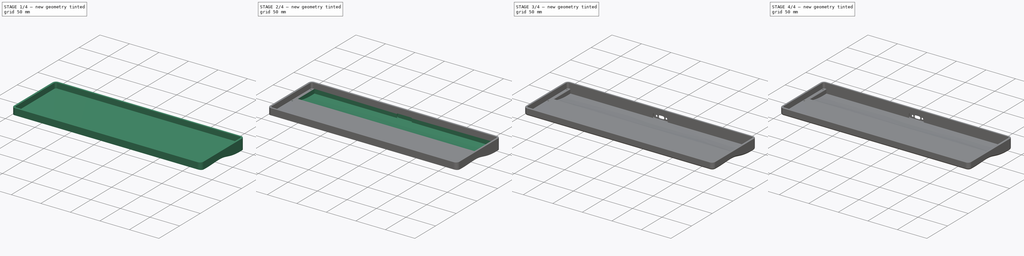
[diagram: build sequence overview — one tinted view per stage of 4, left to right]
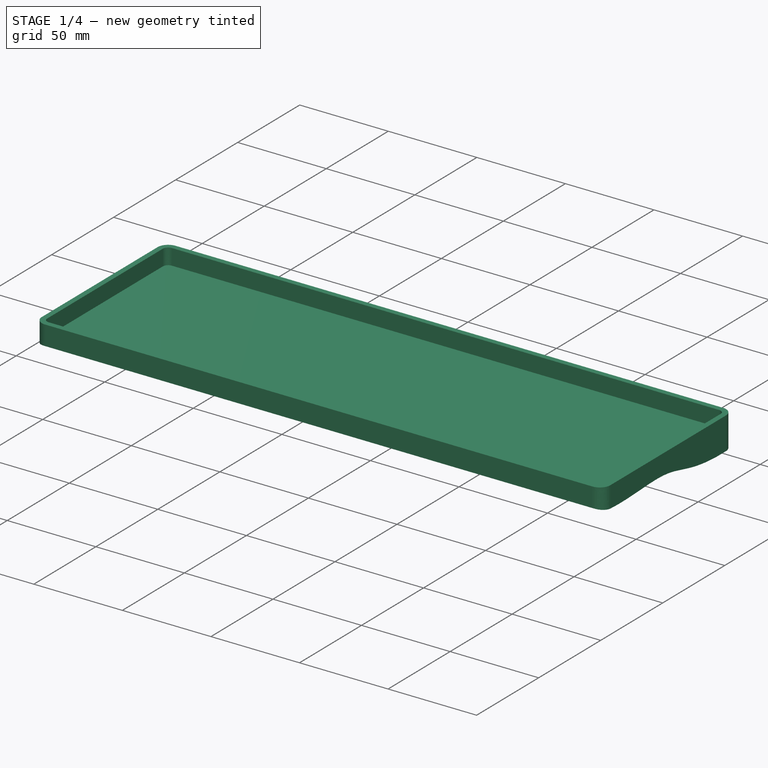
[diagram: stage 1 of 4 — iso view after this stage's code; geometry added in this stage tinted green]
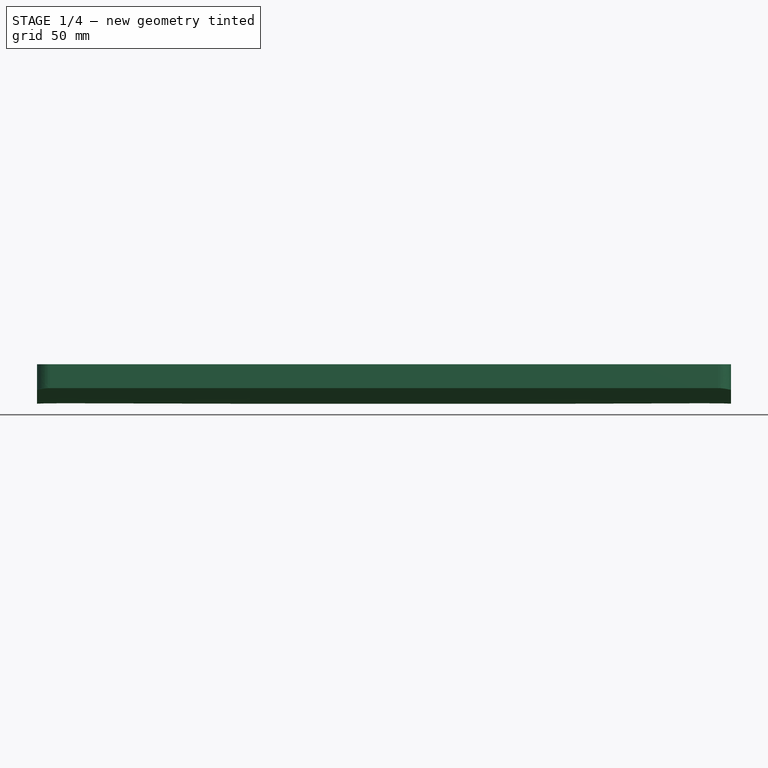
[diagram: stage 1 of 4 — front view after this stage's code; geometry added in this stage tinted green]
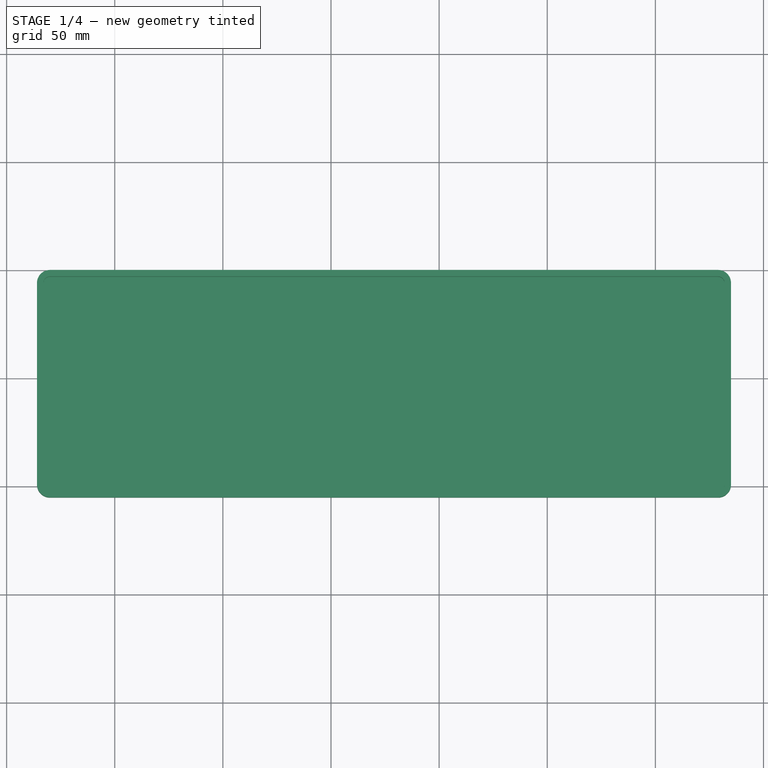
[diagram: stage 1 of 4 — top view after this stage's code; geometry added in this stage tinted green]
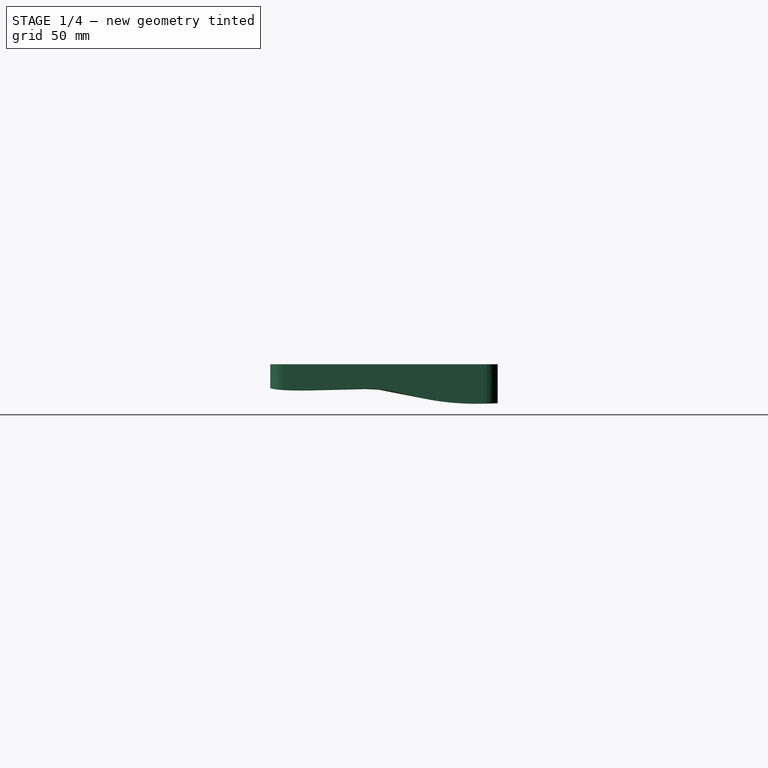
[diagram: stage 1 of 4 — right view after this stage's code; geometry added in this stage tinted green]
FCSTD DOCUMENT  (FreeCAD 1.0R39109 (Git))
Label: TReK_Case_v4
License: All rights reserved
LicenseURL: http://en.wikipedia.org/wiki/All_rights_reserved
objects: Sketcher::SketchObject×8, PartDesign::Pocket×7, PartDesign::Fillet×5, PartDesign::Pad×1, PartDesign::Body×1
note: 56 computed .brp shape members not serialized (recipe doc carries the construction recipe); baked Part::Feature solids carry a one-line shape summary decoded from their .brp

FEATURE [Sketcher::SketchObject] Sketch  label="ネジ穴"
  ArcFitTolerance = 1e-06
  FullyConstrained = false
  MakeInternals = false
  sketch-geometry (6):
    g0: BSplineCurve PolesCount=7 KnotsCount=4 Degree=2 IsPeriodic=0
    g1: BSplineCurve PolesCount=7 KnotsCount=4 Degree=2 IsPeriodic=0
    g2: BSplineCurve PolesCount=7 KnotsCount=4 Degree=2 IsPeriodic=0
    g3: BSplineCurve PolesCount=7 KnotsCount=4 Degree=2 IsPeriodic=0
    g4: BSplineCurve PolesCount=7 KnotsCount=4 Degree=2 IsPeriodic=0
    g5: BSplineCurve PolesCount=7 KnotsCount=4 Degree=2 IsPeriodic=0
FEATURE [Sketcher::SketchObject] Sketch001  label="内側外形線"
  ArcFitTolerance = 1e-06
  FullyConstrained = false
  MakeInternals = false
  sketch-geometry (8):
    g0: BSplineCurve PolesCount=3 KnotsCount=2 Degree=2 IsPeriodic=0
    g1: BSplineCurve PolesCount=2 KnotsCount=2 Degree=1 IsPeriodic=0
    g2: BSplineCurve PolesCount=3 KnotsCount=2 Degree=2 IsPeriodic=0
    g3: BSplineCurve PolesCount=2 KnotsCount=2 Degree=1 IsPeriodic=0
    g4: BSplineCurve PolesCount=3 KnotsCount=2 Degree=2 IsPeriodic=0
    g5: BSplineCurve PolesCount=2 KnotsCount=2 Degree=1 IsPeriodic=0
    g6: BSplineCurve PolesCount=3 KnotsCount=2 Degree=2 IsPeriodic=0
    g7: BSplineCurve PolesCount=2 KnotsCount=2 Degree=1 IsPeriodic=0
FEATURE [Sketcher::SketchObject] Sketch002  label="外側外形線"
  ArcFitTolerance = 1e-06
  FullyConstrained = false
  MakeInternals = false
  sketch-geometry (8):
    g0: BSplineCurve PolesCount=2 KnotsCount=2 Degree=1 IsPeriodic=0
    g1: BSplineCurve PolesCount=3 KnotsCount=2 Degree=2 IsPeriodic=0
    g2: BSplineCurve PolesCount=2 KnotsCount=2 Degree=1 IsPeriodic=0
    g3: BSplineCurve PolesCount=2 KnotsCount=2 Degree=1 IsPeriodic=0
    g4: BSplineCurve PolesCount=3 KnotsCount=2 Degree=2 IsPeriodic=0
    g5: BSplineCurve PolesCount=3 KnotsCount=2 Degree=2 IsPeriodic=0
    g6: BSplineCurve PolesCount=3 KnotsCount=2 Degree=2 IsPeriodic=0
    g7: BSplineCurve PolesCount=2 KnotsCount=2 Degree=1 IsPeriodic=0
FEATURE [PartDesign::Pad] Pad  label="Pad（外側外形線）"
  Direction = (0,0,1)
  Length = 25
  Length2 = 10
  Profile = -> Sketch002
  ReferenceAxis = -> Sketch002 [N_Axis]
  Refine = true
  Reversed = true
  Suppressed = false
  Type = 0
FEATURE [Sketcher::SketchObject] Sketch003  label="チルトカット"
  ArcFitTolerance = 1e-06
  AttachmentSupport = -> [Pad]
  ExternalGeometry = -> [Pad]
  FullyConstrained = false
  MakeInternals = false
  MapMode = 5
  Placement = pos=(14.0416,0,0) rot=(0.57735,-0.57735,-0.57735;2.0944rad)
  sketch-geometry (17):
    g0: LineSegment StartX=0.05 StartY=-18 StartZ=0 EndX=0.05 EndY=-31 EndZ=0
    g1: LineSegment StartX=0.05 StartY=-31 StartZ=0 EndX=105.25 EndY=-31 EndZ=0
    g2: LineSegment StartX=105.25 StartY=-31 StartZ=0 EndX=105.25 EndY=-11 EndZ=0
    g3: LineSegment [constr] StartX=105.25 StartY=-11 StartZ=0 EndX=105.25 EndY=0 EndZ=0
    g4: LineSegment [constr] StartX=0.05 StartY=0 StartZ=0 EndX=0.05 EndY=-18 EndZ=0
    g5-g10: Circle [constr] x6 (B-spline internal-alignment scaffolding for g11; pole/knot coordinates omitted)
    g11: BSplineCurve PolesCount=6 KnotsCount=4 Degree=3 IsPeriodic=0
    g12-g15: GeomPoint [constr] x4 (B-spline internal-alignment scaffolding for g11; pole/knot coordinates omitted)
    g16: LineSegment [constr] StartX=105.25 StartY=-11 StartZ=0 EndX=0.05 EndY=-11 EndZ=0
  constraints (23):
    c: PointOnObject(g0,g-6)
    c: Vertical(g0)
    c: Coincident(g0,g1)
    c: Horizontal(g1)
    c: Coincident(g1,g2)
    c: PointOnObject(g2,g-5)
    c: Vertical(g2)
    c: DistanceY(g2,g2) = 20
    c: Coincident(g3,g2)
    c: Coincident(g3,g-5)
    c: DistanceY(g3,g3) = 11
    c: Distance(g4) = 18
    c: Coincident(g4,g-6)
    c: Coincident(g4,g0)
    c: Weight(g5) = 1
    c: Equal(g5, g6-g10) x5
    c: InternalAlignment(g5-g10 -> g11) x6
    c: InternalAlignment(g12-g15 -> g11) x4
    c: Coincident(g5,g0)
    c: Coincident(g10,g2)
    c: Coincident(g16,g11)
    c: PointOnObject(g16,g4)
    c: Horizontal(g16)
FEATURE [PartDesign::Pocket] Pocket  label="Pocket（チルトカット）"
  BaseFeature = -> Pad
  Direction = (1,0,0)
  Length = 5
  Length2 = 5
  Profile = -> Sketch003
  ReferenceAxis = -> Sketch003 [N_Axis]
  Refine = true
  Suppressed = false
  Type = 1
FEATURE [PartDesign::Pocket] Pocket001  label="Pocket001（内側外形線）"
  BaseFeature = -> Pocket
  Direction = (0,0,-1)
  Length = 9
  Length2 = 5
  Profile = -> Sketch001
  ReferenceAxis = -> Sketch001 [N_Axis]
  Refine = true
  Suppressed = false
  Type = 0
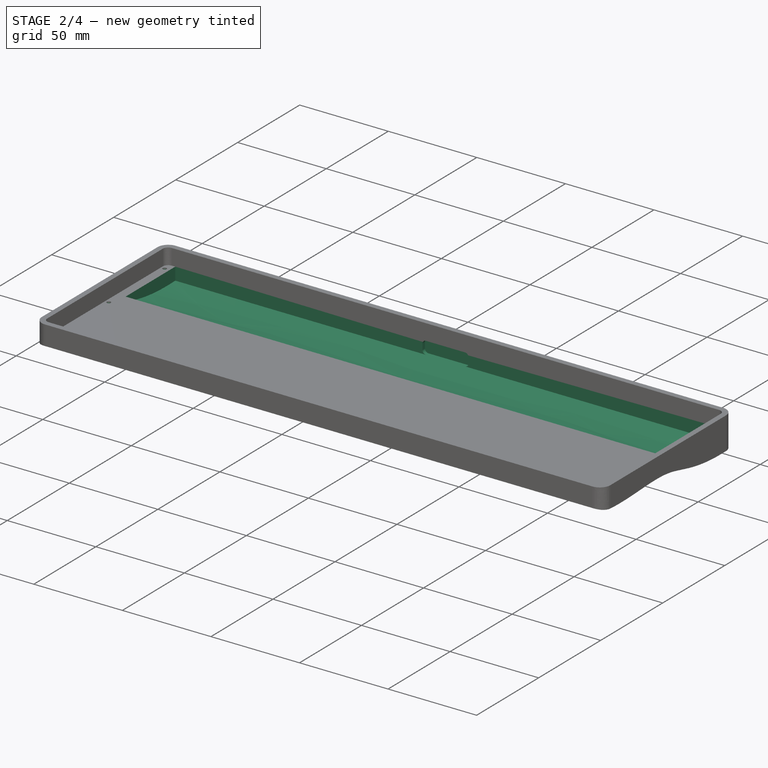
[diagram: stage 2 of 4 — iso view after this stage's code; geometry added in this stage tinted green]
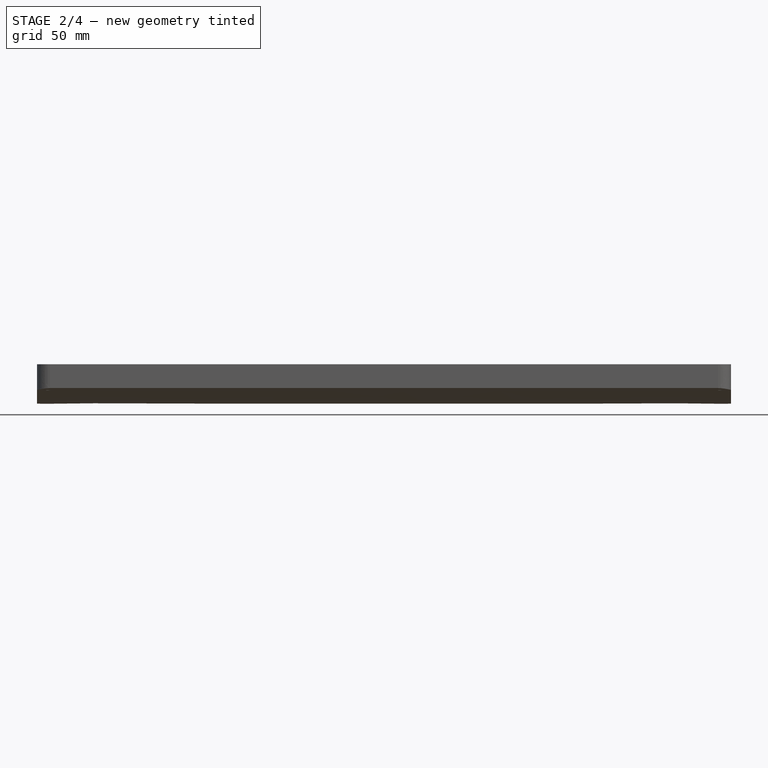
[diagram: stage 2 of 4 — front view after this stage's code; geometry added in this stage tinted green]
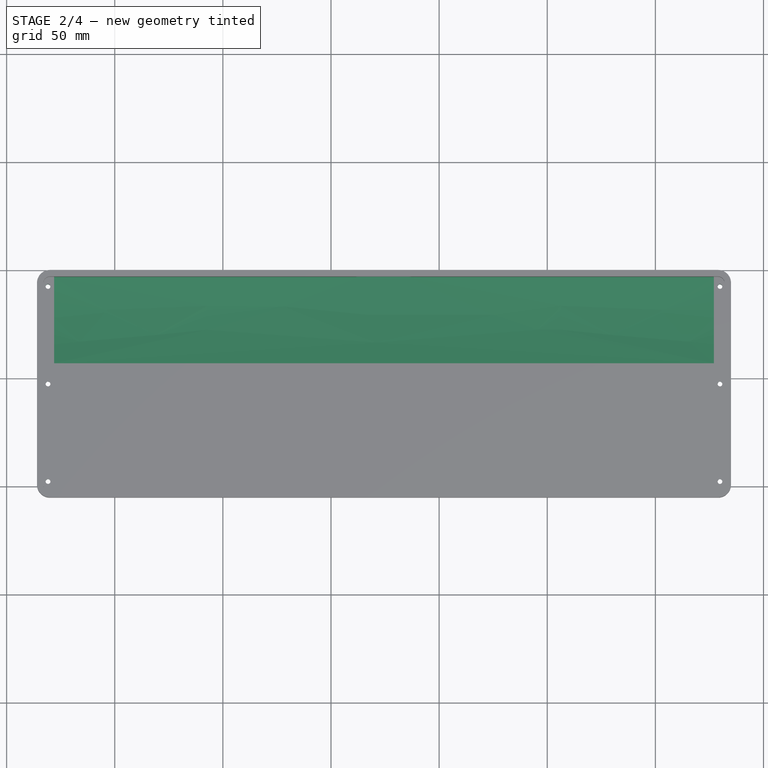
[diagram: stage 2 of 4 — top view after this stage's code; geometry added in this stage tinted green]
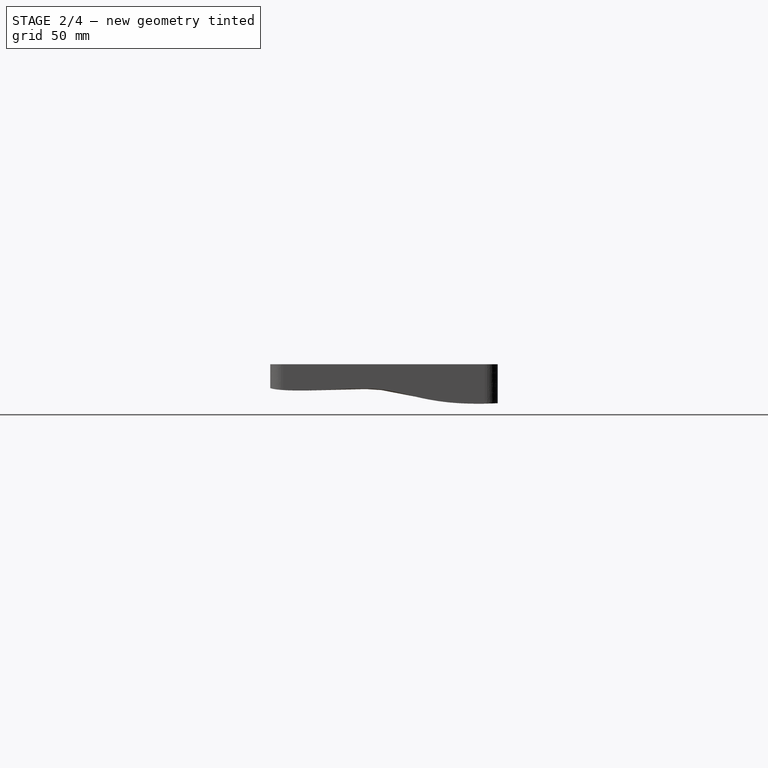
[diagram: stage 2 of 4 — right view after this stage's code; geometry added in this stage tinted green]
FEATURE [Sketcher::SketchObject] Sketch004  label="MCU部"
  ArcFitTolerance = 1e-06
  AttachmentSupport = -> [Pocket001]
  ExternalGeometry = -> [Pocket001]
  FullyConstrained = true
  MakeInternals = false
  MapMode = 5
  Placement = pos=(0,0,-9) rot=(0,0,1;0rad)
  sketch-geometry (6):
    g0: LineSegment StartX=21.9416 StartY=-3.05 StartZ=0 EndX=21.9416 EndY=-43.05 EndZ=0
    g1: LineSegment StartX=21.9416 StartY=-43.05 StartZ=0 EndX=327.092 EndY=-43.05 EndZ=0
    g2: LineSegment StartX=327.092 StartY=-43.05 StartZ=0 EndX=327.092 EndY=-3.05 EndZ=0
    g3: LineSegment StartX=327.092 StartY=-3.05 StartZ=0 EndX=21.9416 EndY=-3.05 EndZ=0
    g4: LineSegment [constr] StartX=327.092 StartY=-43.05 StartZ=0 EndX=331.992 EndY=-43.05 EndZ=0
    g5: LineSegment [constr] StartX=21.9416 StartY=-43.05 StartZ=0 EndX=17.0416 EndY=-43.05 EndZ=0
  constraints (18):
    c: Coincident(g0,g1)
    c: Coincident(g1,g2)
    c: Coincident(g2,g3)
    c: Coincident(g3,g0)
    c: Vertical(g0)
    c: Vertical(g2)
    c: Horizontal(g1)
    c: Horizontal(g3)
    c: Distance(g4) = 4.9
    c: Coincident(g4,g1)
    c: PointOnObject(g4,g-5)
    c: Horizontal(g4)
    c: Distance(g5) = 4.9
    c: Coincident(g5,g0)
    c: PointOnObject(g5,g-4)
    c: Horizontal(g5)
    c: PointOnObject(g0,g-3)
    c: DistanceY(g0,g0) = 40
FEATURE [PartDesign::Pocket] Pocket002  label="Pocket002（MCU部）"
  BaseFeature = -> Pocket001
  Direction = (0,0,-1)
  Length = 0
  Length2 = 5
  Offset = -2
  Profile = -> Sketch004
  ReferenceAxis = -> Sketch004 [N_Axis]
  Refine = true
  Suppressed = false
  Type = 3
  UpToFace = -> Pocket001 [Face4]
FEATURE [PartDesign::Pocket] Pocket003  label="Pocket003（ネジ穴）"
  BaseFeature = -> Pocket002
  Direction = (0,0,-1)
  Length = 5
  Length2 = 5
  Profile = -> Sketch
  ReferenceAxis = -> Sketch [N_Axis]
  Refine = true
  Suppressed = false
  Type = 1
FEATURE [Sketcher::SketchObject] Sketch005  label="ネジ穴ザグリ"
  ArcFitTolerance = 1e-06
  AttachmentSupport = -> [Pad]
  ExternalGeometry = -> [Pocket003]
  FullyConstrained = true
  MakeInternals = false
  MapMode = 5
  Placement = pos=(0,0,-25) rot=(1,0,0;3.14159rad)
  sketch-geometry (12):
    g0: LineSegment [constr] StartX=20.2416 StartY=97.75 StartZ=0 EndX=18.0416 EndY=97.75 EndZ=0
    g1: LineSegment [constr] StartX=20.2416 StartY=52.65 StartZ=0 EndX=18.0416 EndY=52.65 EndZ=0
    g2: LineSegment [constr] StartX=20.2416 StartY=7.55 StartZ=0 EndX=18.0416 EndY=7.55 EndZ=0
    g3: LineSegment [constr] StartX=330.992 StartY=97.75 StartZ=0 EndX=328.792 EndY=97.75 EndZ=0
    g4: LineSegment [constr] StartX=330.992 StartY=52.65 StartZ=0 EndX=328.792 EndY=52.65 EndZ=0
    g5: LineSegment [constr] StartX=330.992 StartY=7.55 StartZ=0 EndX=328.792 EndY=7.55 EndZ=0
    g6: Circle CenterX=329.892 CenterY=7.55 CenterZ=0 NormalX=0 NormalY=0 NormalZ=1 AngleXU=0 Radius=2.3
    g7: Circle CenterX=329.892 CenterY=52.65 CenterZ=0 NormalX=0 NormalY=0 NormalZ=1 AngleXU=0 Radius=2.3
    g8: Circle CenterX=329.892 CenterY=97.75 CenterZ=0 NormalX=0 NormalY=0 NormalZ=1 AngleXU=0 Radius=2.3
    g9: Circle CenterX=19.1416 CenterY=97.75 CenterZ=0 NormalX=0 NormalY=0 NormalZ=1 AngleXU=0 Radius=2.3
    g10: Circle CenterX=19.1416 CenterY=52.65 CenterZ=0 NormalX=0 NormalY=0 NormalZ=1 AngleXU=0 Radius=2.3
    g11: Circle CenterX=19.1416 CenterY=7.55 CenterZ=0 NormalX=0 NormalY=0 NormalZ=1 AngleXU=0 Radius=2.3
  constraints (30):
    c: Coincident(g0,g-3)
    c: PointOnObject(g0,g-3)
    c: Horizontal(g0)
    c: Coincident(g1,g-4)
    c: PointOnObject(g1,g-4)
    c: Horizontal(g1)
    c: Coincident(g2,g-5)
    c: PointOnObject(g2,g-5)
    c: Horizontal(g2)
    c: Coincident(g3,g-6)
    c: PointOnObject(g3,g-6)
    c: Horizontal(g3)
    c: Coincident(g4,g-7)
    c: PointOnObject(g4,g-7)
    c: Horizontal(g4)
    c: Coincident(g5,g-8)
    c: PointOnObject(g5,g-8)
    c: Horizontal(g5)
    c: Diameter(g6) = 4.6
    c: Symmetric(g5,g5,g6)
    c: Diameter(g7) = 4.6
    c: Symmetric(g4,g4,g7)
    c: Diameter(g8) = 4.6
    c: Symmetric(g3,g3,g8)
    c: Diameter(g9) = 4.6
    c: Symmetric(g0,g0,g9)
    c: Diameter(g10) = 4.6
    c: Symmetric(g1,g1,g10)
    c: Diameter(g11) = 4.6
    c: Symmetric(g2,g2,g11)
FEATURE [Sketcher::SketchObject] Sketch006  label="USB枠"
  ArcFitTolerance = 1e-06
  FullyConstrained = true
  MakeInternals = false
  MapMode = 5
  Placement = pos=(0,-3.05,0) rot=(1,0,0;1.5708rad)
  sketch-geometry (14):
    g0: LineSegment StartX=161.517 StartY=-11 StartZ=0 EndX=161.517 EndY=-14.1347 EndZ=0
    g1: LineSegment StartX=163.517 StartY=-16.1347 StartZ=0 EndX=185.517 EndY=-16.1347 EndZ=0
    g2: LineSegment StartX=187.517 StartY=-14.1347 StartZ=0 EndX=187.517 EndY=-11 EndZ=0
    g3: LineSegment StartX=185.517 StartY=-9 StartZ=0 EndX=163.517 EndY=-9 EndZ=0
    g4: GeomPoint [constr] X=174.517 Y=-16.1347 Z=0
    g5: GeomPoint [constr] X=174.517 Y=-16.1347 Z=0
    g6: ArcOfCircle CenterX=163.517 CenterY=-11 CenterZ=0 NormalX=0 NormalY=0 NormalZ=1 AngleXU=0 Radius=2 StartAngle=1.5708 EndAngle=3.14159
    g7: GeomPoint [constr] X=161.517 Y=-9 Z=0
    g8: ArcOfCircle CenterX=185.517 CenterY=-11 CenterZ=0 NormalX=0 NormalY=0 NormalZ=1 AngleXU=0 Radius=2 StartAngle=2e-16 EndAngle=1.5708
    g9: GeomPoint [constr] X=187.517 Y=-9 Z=0
    g10: ArcOfCircle CenterX=185.517 CenterY=-14.1347 CenterZ=0 NormalX=0 NormalY=0 NormalZ=1 AngleXU=0 Radius=2 StartAngle=4.71239 EndAngle=6.28319
    g11: GeomPoint [constr] X=187.517 Y=-16.1347 Z=0
    g12: ArcOfCircle CenterX=163.517 CenterY=-14.1347 CenterZ=0 NormalX=0 NormalY=0 NormalZ=1 AngleXU=0 Radius=2 StartAngle=3.14159 EndAngle=4.71239
    g13: GeomPoint [constr] X=161.517 Y=-16.1347 Z=0
  constraints (30):
    c: Vertical(g0)
    c: Vertical(g2)
    c: Horizontal(g1)
    c: Horizontal(g3)
    c: PointOnObject(g4,g-4)
    c: Symmetric(g-4,g-4,g4)
    c: Symmetric(g13,g11,g5)
    c: Coincident(g4,g5)
    c: DistanceX(g7,g9) = 26
    c: PointOnObject(g7,g0)
    c: PointOnObject(g7,g3)
    c: Tangent(g0,g6) = -1.5708
    c: Tangent(g3,g6) = -1.5708
    c: PointOnObject(g9,g3)
    c: PointOnObject(g9,g2)
    c: Tangent(g3,g8) = -1.5708
    c: Tangent(g2,g8) = -1.5708
    c: PointOnObject(g11,g2)
    c: PointOnObject(g11,g1)
    c: Tangent(g2,g10) = -1.5708
    c: Tangent(g1,g10) = -1.5708
    c: PointOnObject(g13,g1)
    c: PointOnObject(g13,g0)
    c: Tangent(g1,g12) = -1.5708
    c: Tangent(g0,g12) = -1.5708
    c: Radius(g6) = 2
    c: Radius(g8) = 2
    c: Radius(g10) = 2
    c: Radius(g12) = 2
    c: PointOnObject(g3,g-3)
FEATURE [PartDesign::Pocket] Pocket005  label="Pocket005（USB枠）"
  BaseFeature = -> Pocket003
  Direction = (0,1,-2e-16)
  Length = 2
  Length2 = 5
  Profile = -> Sketch006
  ReferenceAxis = -> Sketch006 [N_Axis]
  Refine = true
  Suppressed = false
  Type = 0
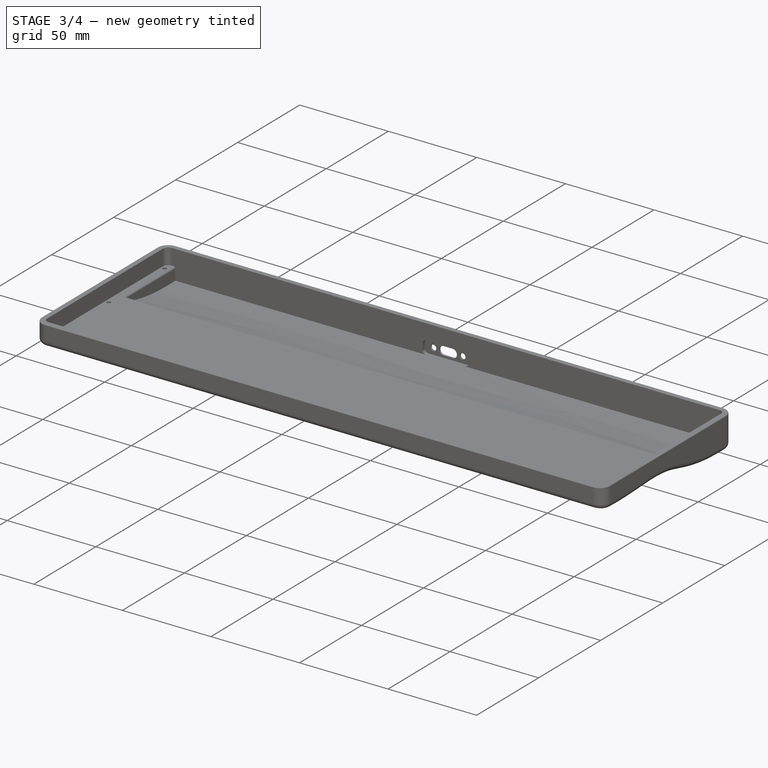
[diagram: stage 3 of 4 — iso view after this stage's code; geometry added in this stage tinted green]
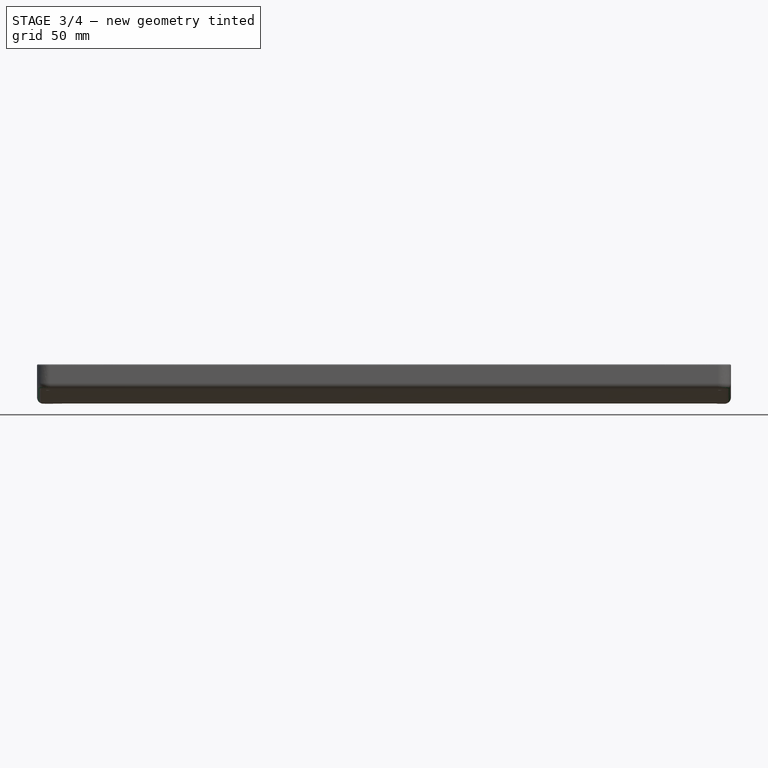
[diagram: stage 3 of 4 — front view after this stage's code; geometry added in this stage tinted green]
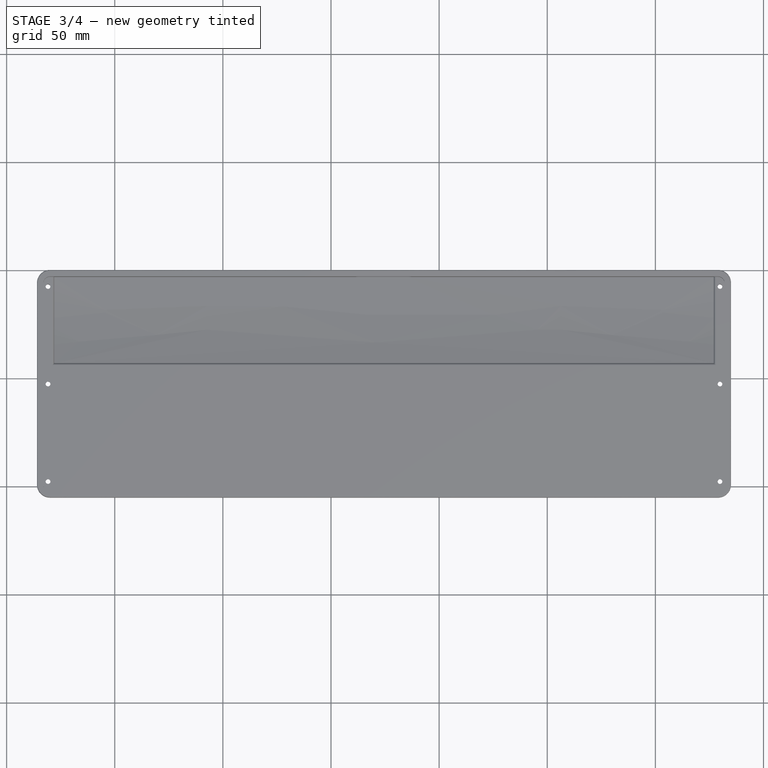
[diagram: stage 3 of 4 — top view after this stage's code; geometry added in this stage tinted green]
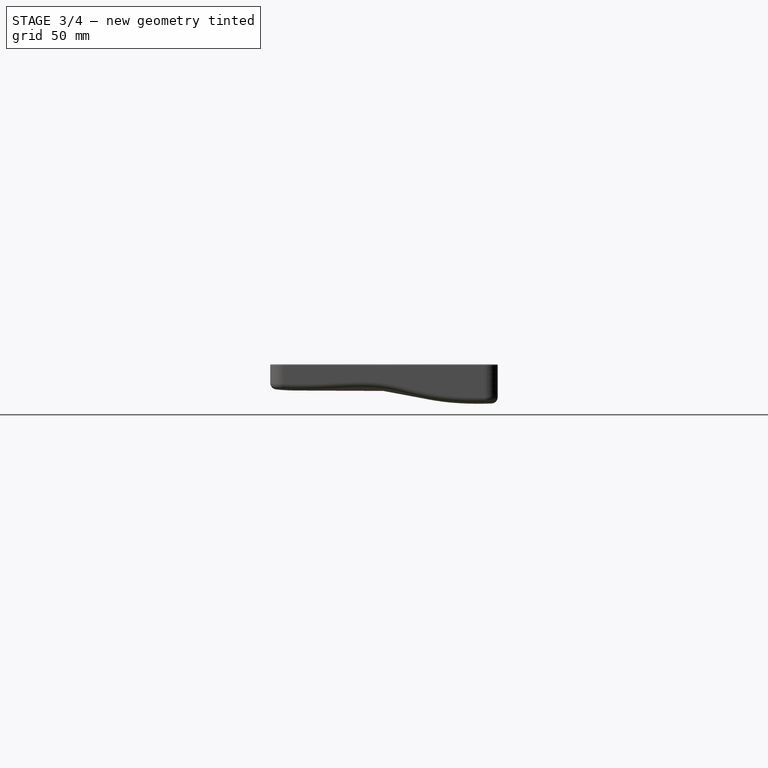
[diagram: stage 3 of 4 — right view after this stage's code; geometry added in this stage tinted green]
FEATURE [Sketcher::SketchObject] Sketch007  label="USB穴"
  ArcFitTolerance = 1e-06
  AttachmentSupport = -> [Pocket005]
  FullyConstrained = true
  MakeInternals = false
  MapMode = 5
  Placement = pos=(0,-0.05,0) rot=(0,0.707107,0.707107;3.14159rad)
  sketch-geometry (14):
    g0: ArcOfCircle CenterX=-177.117 CenterY=-12.5673 CenterZ=0 NormalX=0 NormalY=0 NormalZ=1 AngleXU=0 Radius=2.4 StartAngle=1.5708 EndAngle=4.71239
    g1: ArcOfCircle CenterX=-171.917 CenterY=-12.5673 CenterZ=0 NormalX=0 NormalY=0 NormalZ=1 AngleXU=0 Radius=2.4 StartAngle=4.71239 EndAngle=7.85398
    g2: LineSegment StartX=-177.117 StartY=-10.1673 StartZ=0 EndX=-171.917 EndY=-10.1673 EndZ=0
    g3: LineSegment StartX=-177.117 StartY=-14.9673 StartZ=0 EndX=-171.917 EndY=-14.9673 EndZ=0
    g4: GeomPoint [constr] X=-187.517 Y=-12.5673 Z=0
    g5: GeomPoint [constr] X=-161.517 Y=-12.5673 Z=0
    g6: LineSegment [constr] StartX=-187.517 StartY=-12.5673 StartZ=0 EndX=-161.517 EndY=-12.5673 EndZ=0
    g7: GeomPoint [constr] X=-174.517 Y=-12.5673 Z=0
    g8: LineSegment [constr] StartX=-177.117 StartY=-12.5673 StartZ=0 EndX=-171.917 EndY=-12.5673 EndZ=0
    g9: GeomPoint [constr] X=-174.517 Y=-12.5673 Z=0
    g10: Circle CenterX=-182.767 CenterY=-12.5673 CenterZ=0 NormalX=0 NormalY=0 NormalZ=1 AngleXU=0 Radius=1.6
    g11: Circle CenterX=-166.267 CenterY=-12.5673 CenterZ=0 NormalX=0 NormalY=0 NormalZ=1 AngleXU=0 Radius=1.6
    g12: LineSegment [constr] StartX=-182.767 StartY=-12.5673 StartZ=0 EndX=-166.267 EndY=-12.5673 EndZ=0
    g13: GeomPoint [constr] X=-174.517 Y=-12.5673 Z=0
  constraints (25):
    c: Tangent(g0,g2) = 1.5708
    c: Tangent(g0,g3) = -1.5708
    c: Tangent(g1,g2) = 1.5708
    c: Tangent(g1,g3) = -1.5708
    c: Equal(g0,g1)
    c: Horizontal(g3)
    c: Distance(g0,g1) = 5.2
    c: Diameter(g0) = 4.8
    c: Symmetric(g-4,g-4,g4)
    c: Symmetric(g-6,g-6,g5)
    c: Coincident(g6,g4)
    c: Coincident(g6,g5)
    c: Symmetric(g6,g6,g7)
    c: Coincident(g8,g0)
    c: Coincident(g8,g1)
    c: Symmetric(g8,g8,g9)
    c: Coincident(g9,g7)
    c: Diameter(g10) = 3.2
    c: Diameter(g11) = 3.2
    c: Distance(g10,g11) = 16.5
    c: Coincident(g12,g10)
    c: Coincident(g12,g11)
    c: Horizontal(g12)
    c: Symmetric(g12,g12,g13)
    c: Coincident(g13,g7)
FEATURE [PartDesign::Pocket] Pocket006  label="Pocket006（USB穴）"
  BaseFeature = -> Pocket005
  Direction = (0,-1,2e-16)
  Length = 5
  Length2 = 5
  Profile = -> Sketch007
  ReferenceAxis = -> Sketch007 [N_Axis]
  Refine = true
  Suppressed = false
  Type = 0
FEATURE [PartDesign::Fillet] Fillet  label="Fillet（外周底部）"
  Base = -> Pocket006 [Edge32]
  BaseFeature = -> Pocket006
  Radius = 3
  Refine = true
  SupportTransform = false
  Suppressed = false
  UseAllEdges = false
FEATURE [PartDesign::Fillet] Fillet001  label="Fillet001（外周上部）"
  Base = -> Fillet [Edge22,Edge19,Edge21,Edge20,Edge18,Edge12,Edge3,Edge17]
  BaseFeature = -> Fillet
  Radius = 0.5
  Refine = true
  SupportTransform = false
  Suppressed = false
  UseAllEdges = false
FEATURE [PartDesign::Fillet] Fillet002  label="Fillet002（MCU部内側上辺）"
  Base = -> Fillet001 [Edge145,Edge146,Edge144]
  BaseFeature = -> Fillet001
  Radius = 1
  Refine = true
  SupportTransform = false
  Suppressed = false
  UseAllEdges = false
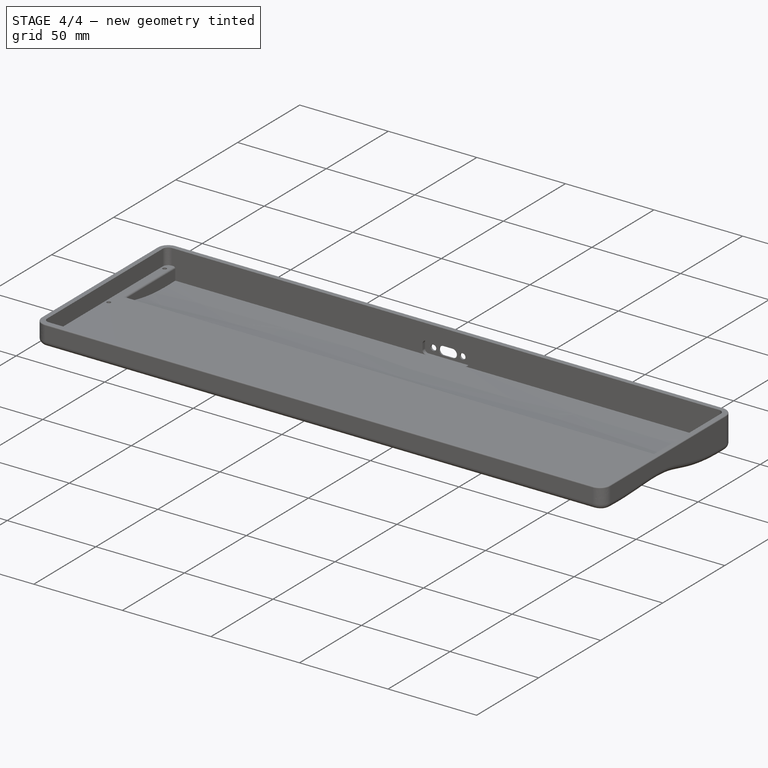
[diagram: stage 4 of 4 — iso view after this stage's code; geometry added in this stage tinted green]
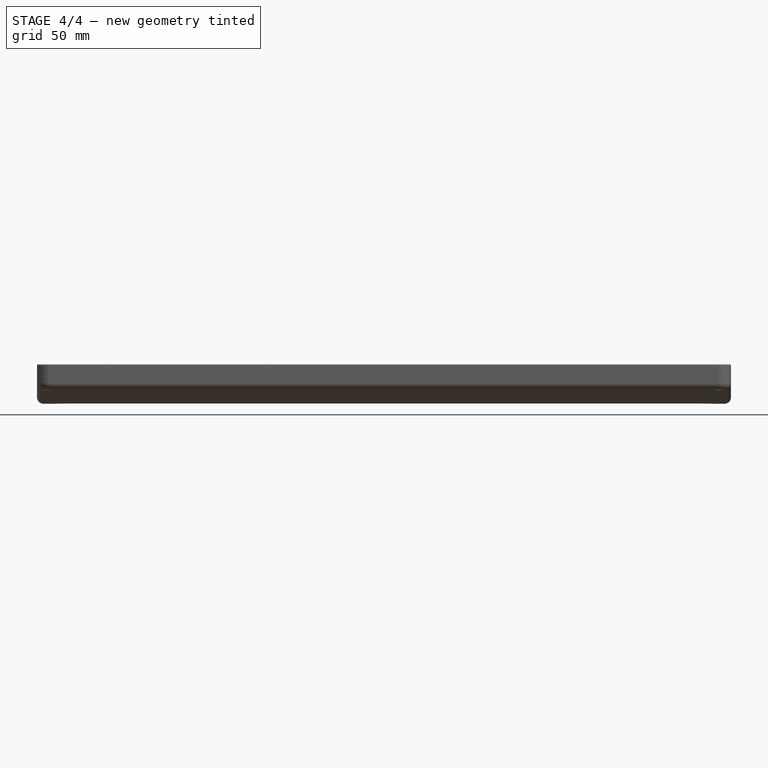
[diagram: stage 4 of 4 — front view after this stage's code; geometry added in this stage tinted green]
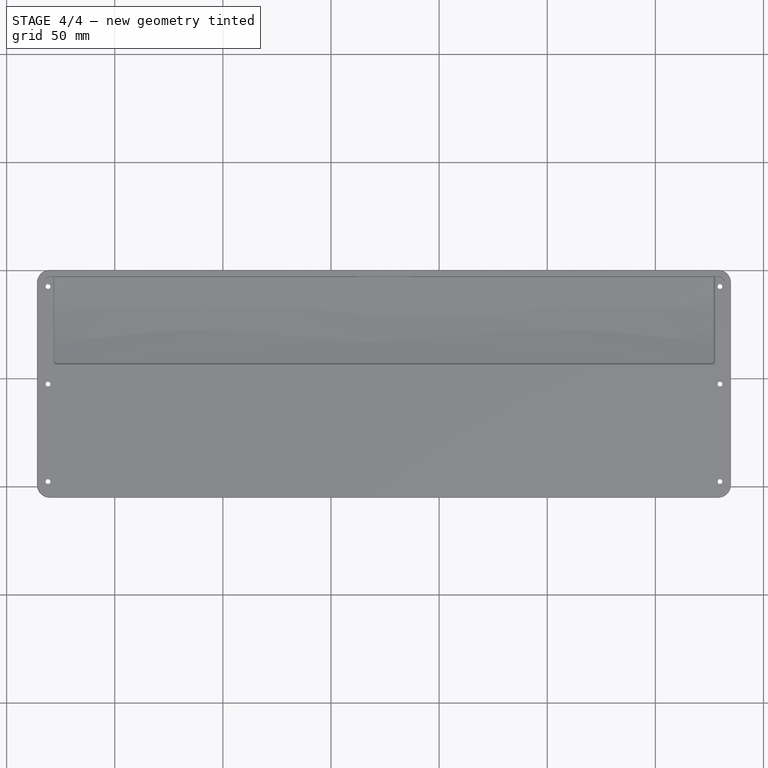
[diagram: stage 4 of 4 — top view after this stage's code; geometry added in this stage tinted green]
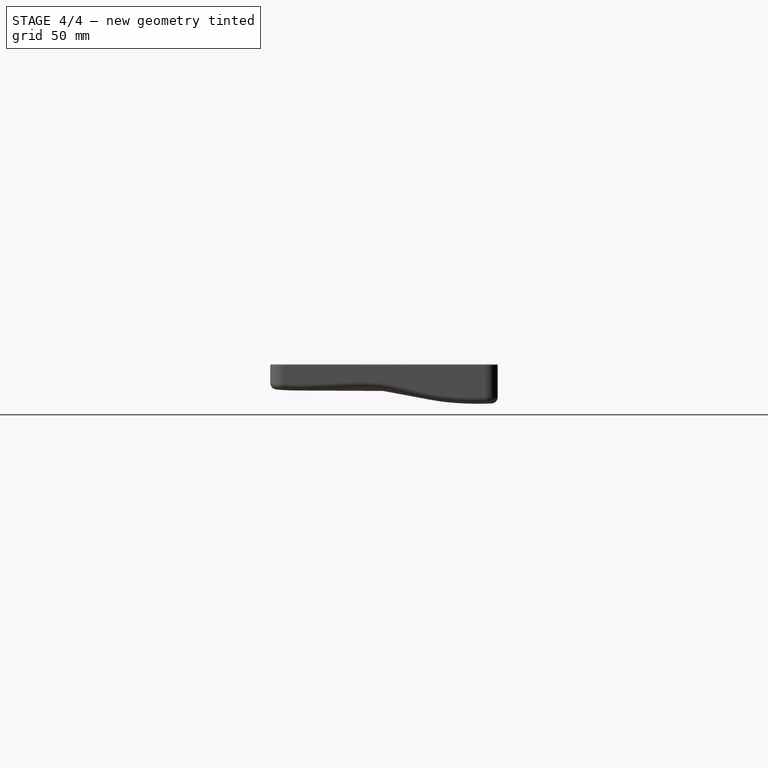
[diagram: stage 4 of 4 — right view after this stage's code; geometry added in this stage tinted green]
FEATURE [PartDesign::Fillet] Fillet003  label="Fillet003（MCU部内側サイド）"
  Base = -> Fillet002 [Edge81,Edge118]
  BaseFeature = -> Fillet002
  Radius = 1.5
  Refine = true
  SupportTransform = false
  Suppressed = false
  UseAllEdges = false
FEATURE [PartDesign::Fillet] Fillet004  label="Fillet004（USB穴）"
  Base = -> Fillet003 [Edge144]
  BaseFeature = -> Fillet003
  Radius = 0.5
  Refine = true
  SupportTransform = false
  Suppressed = false
  UseAllEdges = false
FEATURE [PartDesign::Pocket] Pocket007  label="Pocket007（ネジ穴ザグリ）"
  BaseFeature = -> Fillet004
  Direction = (0,0,1)
  Length = 0
  Length2 = 5
  Offset = -2
  Profile = -> Sketch005
  ReferenceAxis = -> Sketch005 [N_Axis]
  Refine = true
  Suppressed = false
  Type = 3
  UpToFace = -> Fillet004 [Face47]
FEATURE [PartDesign::Body] Body
  AllowCompound = false
  Group = -> [Sketch,Sketch001,Sketch002,Pad,Sketch003,Pocket,Pocket001,Sketch004,Pocket002,Pocket003,Sketch005,Sketch006,Pocket005,Sketch007,Pocket006,Fillet,Fillet001,Fillet002,Fillet003,Fillet004,Pocket007]
  Origin = -> Origin
  Tip = -> Pocket007
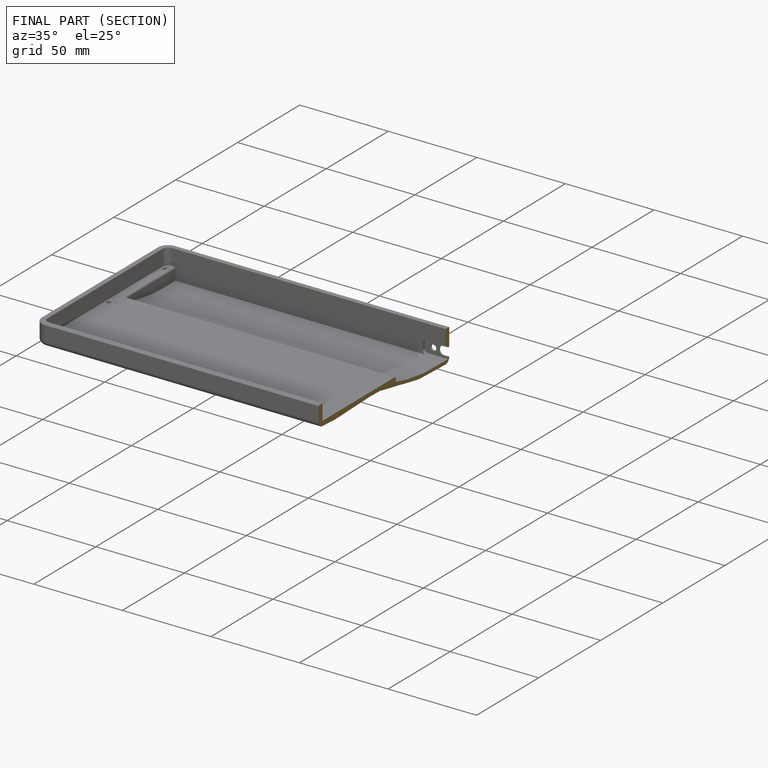
[diagram: finished part — half-section view (interior)]
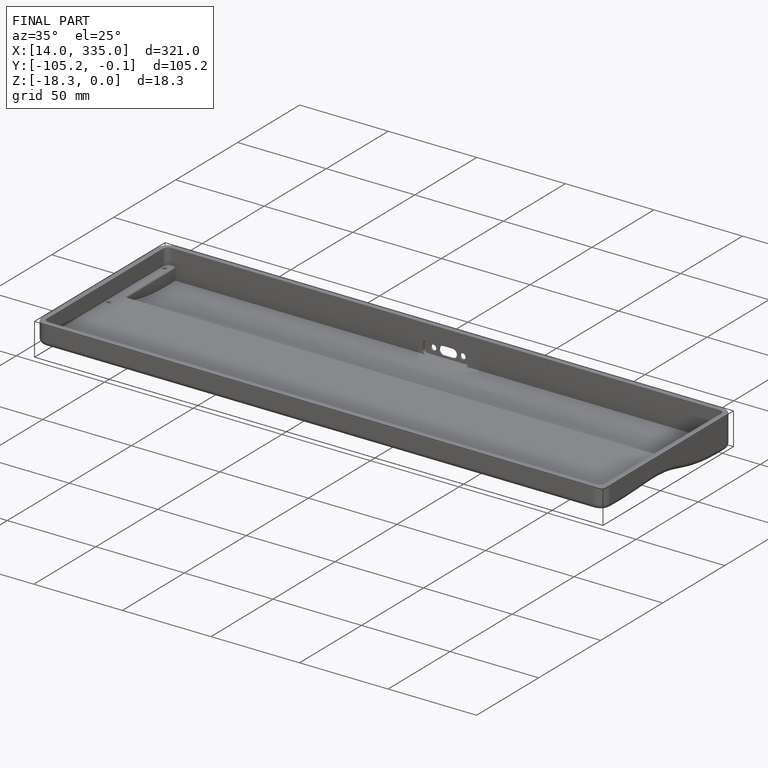
[diagram: finished part — iso view with bounding-box wireframe]
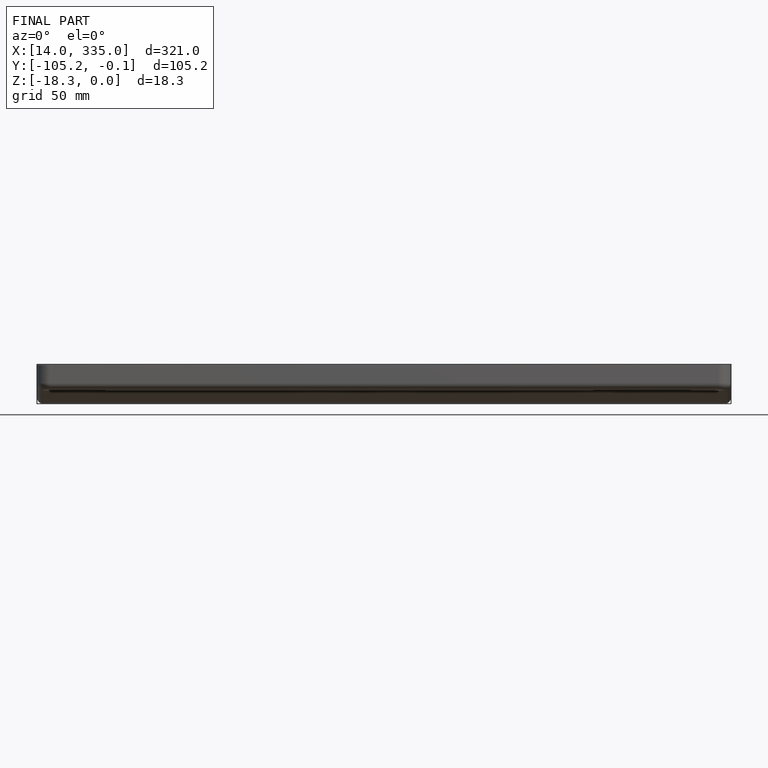
[diagram: finished part — front view with bounding-box wireframe]
